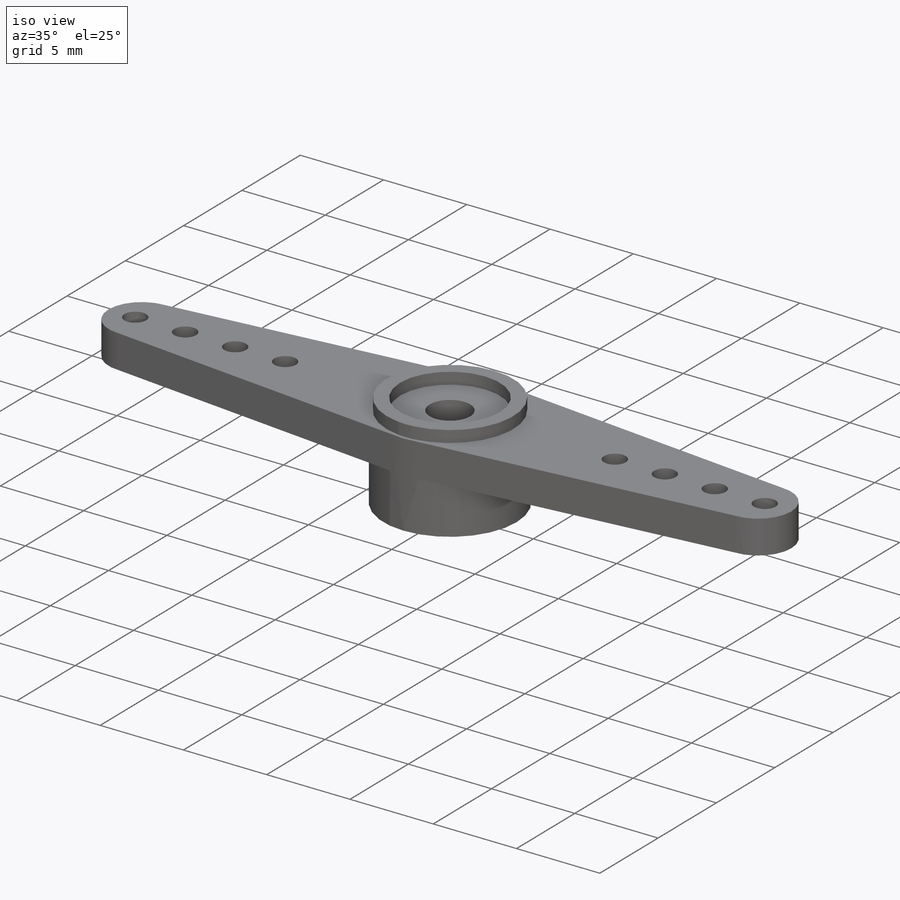
[diagram: iso view]
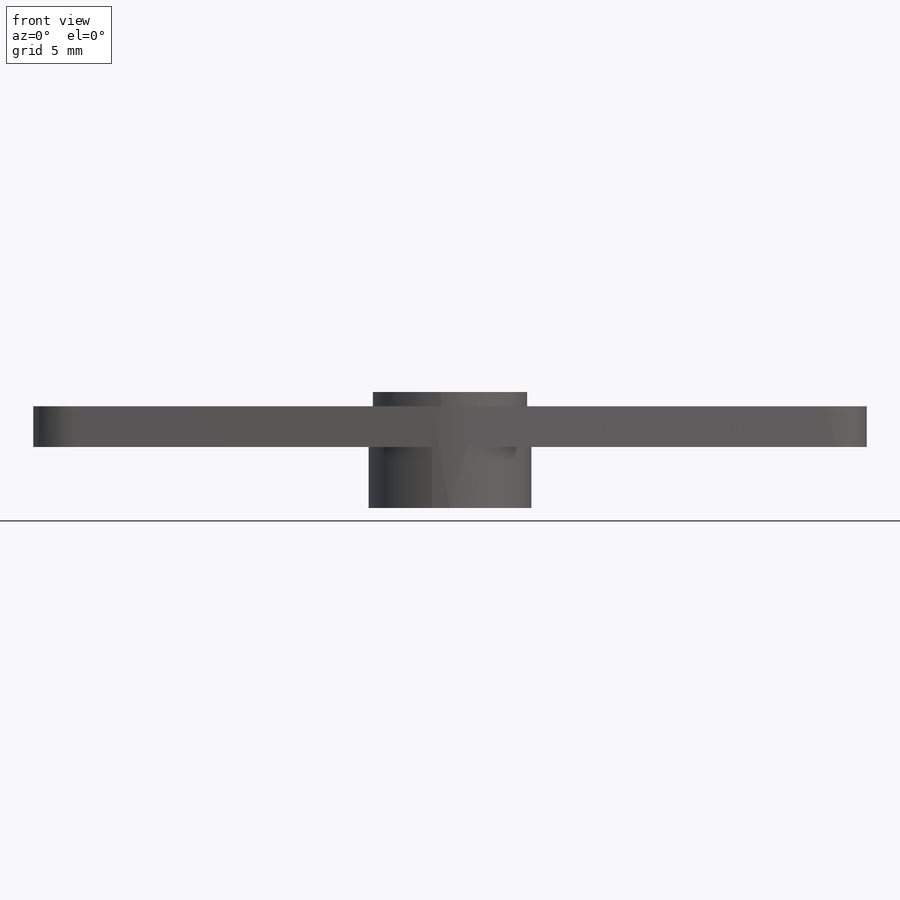
[diagram: front view]
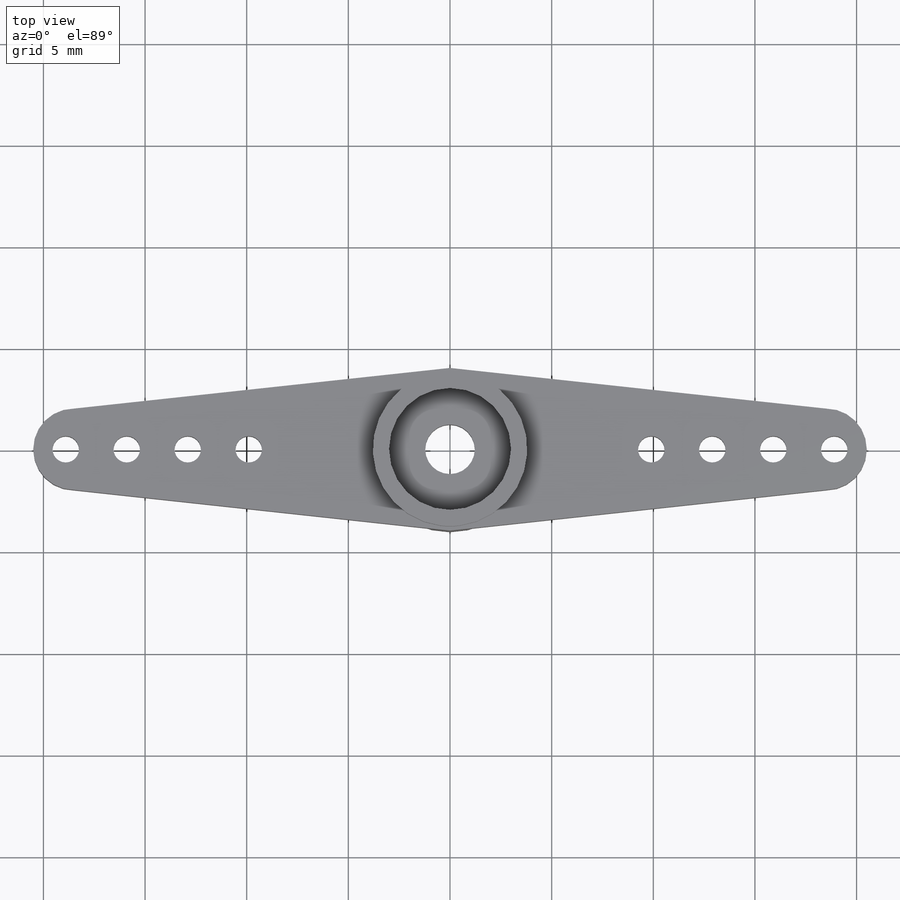
[diagram: top view]
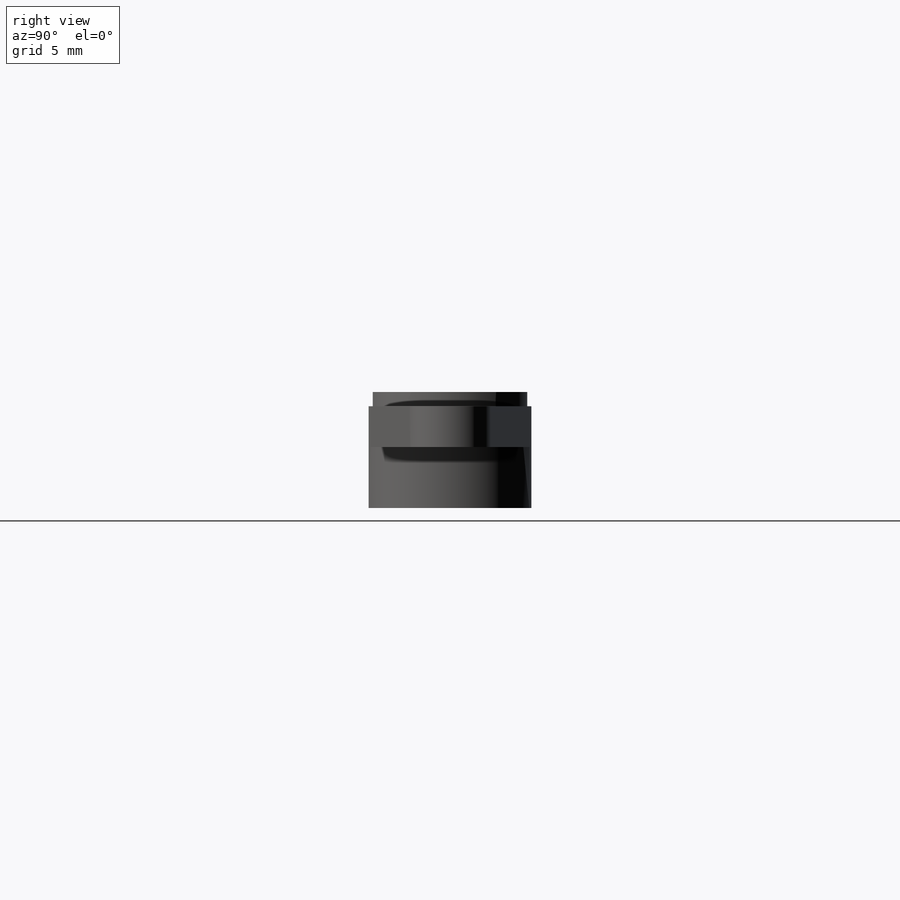
[diagram: right view]
SOLIDWORKS PART (.sldprt)
format: sldprt  version: not decoded by parser v0  size: 187,904 bytes
history: native  units: mm
features: sketch x7, cut_extrude x4, extrude x3, material x1, mirror x1 (+16 scaffold rows collapsed)
feature tree (32):
  scaffold x16  (default folders/planes/origin — collapsed)
  material  "Material <not specified>"
  sketch  "Sketch1"  dims[D1=~48.251128mm]
  extrude  "Extrude1"  Depth=3mm
  sketch  "Sketch2"  dims[D1=20.5mm D2=2.0mm D3=2.0mm D4=2.0mm]
  extrude  "Extrude3"  Depth=2mm
  sketch  "Sketch3"  dims[D2=1.3mm D6=1.3mm D7=1.3mm D8=1.3mm D1=0.4mm D3=3.0mm D4=3.0mm D5=3.0mm]
  cut_extrude  "Extrude4"  Depth=2mm
  sketch  "Sketch4"  dims[D1=~3.723928mm]
  extrude  "Extrude5"  Depth=0.7mm
  sketch  "Sketch5"  dims[D1=~3.079055mm]
  cut_extrude  "Extrude6"  Depth=1mm
  sketch  "Sketch6"  dims[D1=~3.142266mm]
  cut_extrude  "Extrude7"  Depth=3.7mm
  mirror  "Mirror1"
  sketch  "Sketch7"
  cut_extrude  "Extrude8"  Depth=40mm
decode coverage: 13 of 15 modeling features carry decoded parameters
note: ~ marks probable driven/reference dimensions
note: suppression state not decoded; provenance and decode notes live in map.json
